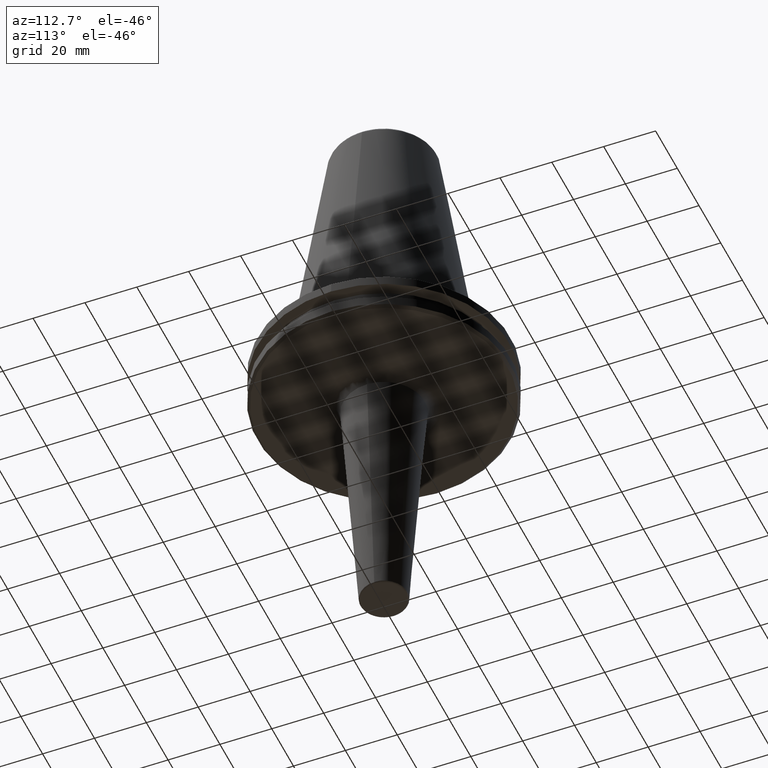
[diagram: clean part render]
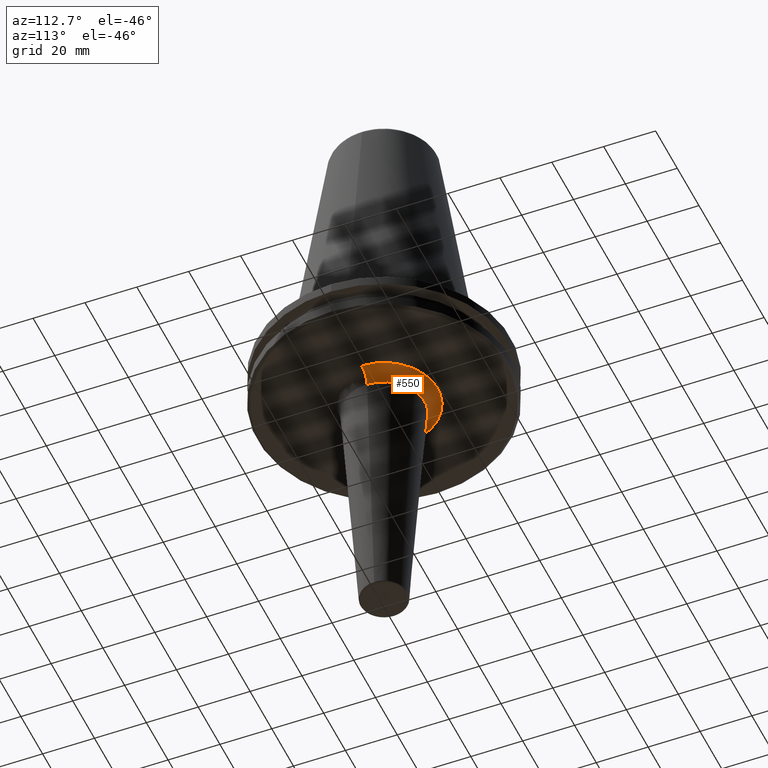
[diagram: same view with one face highlighted and labeled with its STEP entity id]
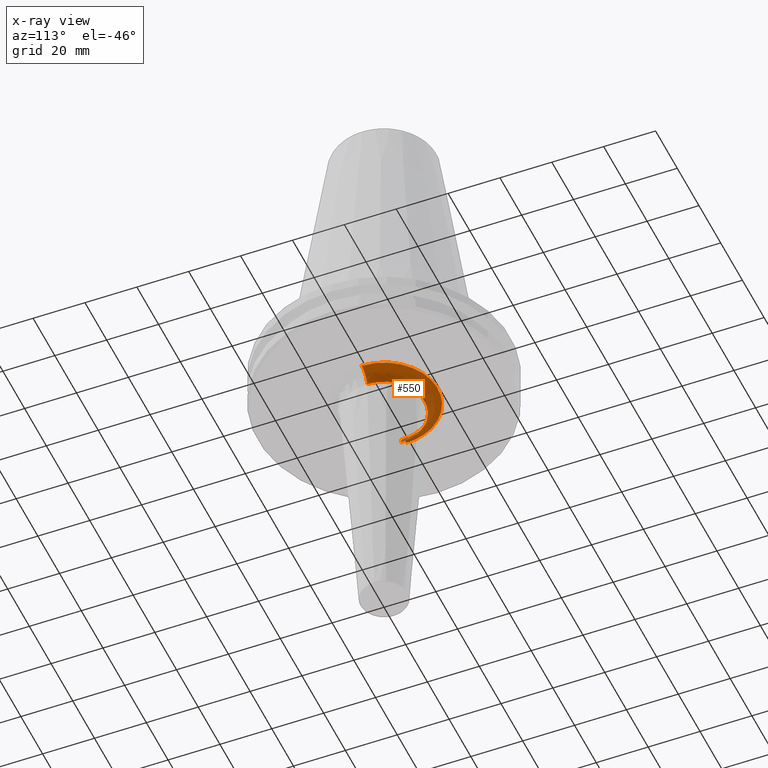
[diagram: x-ray of the same camera — body ghosted, the highlighted face saturated]
A machine part, auxiliary view. The second image highlights one B-rep face of the part: STEP entity #550.
The next image is the same camera in x-ray: the body ghosted, the highlighted face saturated — about 5% of this face is hidden behind the body in this view.
In plain terms, the highlighted face is a freeform B-spline surface patch.
Its self-contained STEP definition (entity closure, byte-faithful):
#2 = CARTESIAN_POINT ( 'NONE',  ( 11.60331024005817500, 17.09677942194831600, -19.10000000000000100 ) ) ;
#14 = CARTESIAN_POINT ( 'NONE',  ( 13.31511334660652900, 15.82824083878072200, -19.10000000000000500 ) ) ;
#27 = VERTEX_POINT ( 'NONE', #644 ) ;
#31 = CARTESIAN_POINT ( 'NONE',  ( 14.10622684062553100, 15.11461244780939600, -19.10000000000000900 ) ) ;
#40 = CARTESIAN_POINT ( 'NONE',  ( 11.82395498741769300, 16.94638141810697000, -19.10000000000000500 ) ) ;
#61 = CARTESIAN_POINT ( 'NONE',  ( 12.33117060663831100, 16.58611637784333200, -19.10000000000000500 ) ) ;
#65 = EDGE_CURVE ( 'NONE', #480, #1059, #1311, .T. ) ;
#107 = CARTESIAN_POINT ( 'NONE',  ( 15.61876583215376100, 13.60199461778601600, -19.10000000000000500 ) ) ;
#110 = CARTESIAN_POINT ( 'NONE',  ( 17.93559221354987100, 10.26945689679697600, -19.10000000000000500 ) ) ;
#118 = CARTESIAN_POINT ( 'NONE',  ( 17.38924988200345100, 11.16017969222157500, -19.10000000000000900 ) ) ;
#123 = CARTESIAN_POINT ( 'NONE',  ( 17.34296859954912800, 11.23197425704089600, -19.10000000000000500 ) ) ;
#128 = CARTESIAN_POINT ( 'NONE',  ( 17.62174341496280400, 10.79154292651847200, -19.10000000000000100 ) ) ;
#151 = ORIENTED_EDGE ( 'NONE', *, *, #365, .T. ) ;
#186 = CARTESIAN_POINT ( 'NONE',  ( 17.48283429422362900, 11.01302723254893200, -19.10000000000000100 ) ) ;
#188 = CARTESIAN_POINT ( 'NONE',  ( 18.95456656347803900, 8.254718562825205600, -19.10000000000000500 ) ) ;
#221 = CARTESIAN_POINT ( 'NONE',  ( 18.52219987817333500, 9.204127574752242000, -19.10000000000000500 ) ) ;
#232 = CARTESIAN_POINT ( 'NONE',  ( 19.22756302017071000, 7.565093204889770100, -19.10000000000000500 ) ) ;
#241 = CARTESIAN_POINT ( 'NONE',  ( 19.24222113980667400, 7.527722220469227600, -19.09999999999999800 ) ) ;
#260 = CARTESIAN_POINT ( 'NONE',  ( 19.42054852205212300, 7.058399176957856000, -19.10000000000000500 ) ) ;
#268 = EDGE_LOOP ( 'NONE', ( #269, #151, #301, #1389 ) ) ;
#269 = ORIENTED_EDGE ( 'NONE', *, *, #65, .F. ) ;
#273 = CARTESIAN_POINT ( 'NONE',  ( 19.31773304246670600, 7.332514990210746000, -19.10000000000000900 ) ) ;
#289 = CARTESIAN_POINT ( 'NONE',  ( 19.27257217906255000, 7.449680959839330500, -19.10000000000000500 ) ) ;
#301 = ORIENTED_EDGE ( 'NONE', *, *, #987, .F. ) ;
#326 = CARTESIAN_POINT ( 'NONE',  ( 20.34204610887248800, 3.623787591533039100, -19.10000000000000100 ) ) ;
#340 = CARTESIAN_POINT ( 'NONE',  ( 19.61594000779249900, 6.507253347307340600, -19.10000000000000500 ) ) ;
#342 = CARTESIAN_POINT ( 'NONE',  ( 19.96576508555141400, 5.393304875427365800, -19.10000000000000500 ) ) ;
#353 = CIRCLE ( 'NONE', #1461, 5.000000000000000900 ) ;
#355 = CIRCLE ( 'NONE', #1016, 15.67444019469497000 ) ;
#360 = CARTESIAN_POINT ( 'NONE',  ( 20.32109553540453500, 3.739177560899837900, -19.10000000000001200 ) ) ;
#361 = DIRECTION ( 'NONE',  ( -1.000000000000000000, 0.0000000000000000000, 0.0000000000000000000 ) ) ;
#364 = DIRECTION ( 'NONE',  ( 0.0000000000000000000, 1.000000000000000000, 0.0000000000000000000 ) ) ;
#365 = EDGE_CURVE ( 'NONE', #480, #1339, #353, .T. ) ;
#371 = CARTESIAN_POINT ( 'NONE',  ( 20.33151911907991800, 3.682070515440722900, -19.10000000000000100 ) ) ;
#374 = CARTESIAN_POINT ( 'NONE',  ( -20.66223503040310300, 0.0000000000000000000, -19.10000000000000500 ) ) ;
#375 = CARTESIAN_POINT ( 'NONE',  ( 20.41160845742173900, 3.215434902084175900, -19.10000000000000500 ) ) ;
#377 = CARTESIAN_POINT ( 'NONE',  ( -20.66223503040310300, 0.0000000000000000000, -24.10000000000000900 ) ) ;
#397 = AXIS2_PLACEMENT_3D ( 'NONE', #377, #364, #361 ) ;
#437 = CARTESIAN_POINT ( 'NONE',  ( 20.36601957362675100, 3.487740927830100400, -19.10000000000000900 ) ) ;
#439 = CARTESIAN_POINT ( 'NONE',  ( 15.67444019469497000, 1.919565301285981100E-015, -23.75085436150044400 ) ) ;
#446 = CARTESIAN_POINT ( 'NONE',  ( 15.67444019469496700, 31.34888038938993300, -23.75085436150044100 ) ) ;
#449 = CARTESIAN_POINT ( 'NONE',  ( 20.49335404215760200, 2.669972057232155000, -19.10000000000000500 ) ) ;
#452 = CARTESIAN_POINT ( 'NONE',  ( -15.67444019469496800, 31.34888038938993300, -23.75085436150044100 ) ) ;
#455 = CARTESIAN_POINT ( 'NONE',  ( -15.67444019469497000, 0.0000000000000000000, -23.75085436150044400 ) ) ;
#459 = CARTESIAN_POINT ( 'NONE',  ( 15.86780677280815500, 1.943245877380819400E-015, -20.98847467416920800 ) ) ;
#462 = CARTESIAN_POINT ( 'NONE',  ( 15.86780677280815500, 31.73561354561631000, -20.98847467416921100 ) ) ;
#465 = CARTESIAN_POINT ( 'NONE',  ( -15.86780677280815700, 31.73561354561631000, -20.98847467416921100 ) ) ;
#466 = CARTESIAN_POINT ( 'NONE',  ( -15.86780677280815500, 0.0000000000000000000, -20.98847467416920800 ) ) ;
#469 = CARTESIAN_POINT ( 'NONE',  ( 17.89309578317999100, 2.191272247770838200E-015, -19.10000000000001200 ) ) ;
#473 = CARTESIAN_POINT ( 'NONE',  ( 17.89309578317998700, 35.78619156635997500, -19.10000000000001200 ) ) ;
#480 = VERTEX_POINT ( 'NONE', #595 ) ;
#483 = CARTESIAN_POINT ( 'NONE',  ( -17.89309578317999100, 35.78619156635997500, -19.10000000000001200 ) ) ;
#485 = CARTESIAN_POINT ( 'NONE',  ( -17.89309578317999100, 0.0000000000000000000, -19.10000000000001200 ) ) ;
#487 = CARTESIAN_POINT ( 'NONE',  ( 20.66223503040310300, 2.530393999321347500E-015, -19.10000000000000900 ) ) ;
#488 = CARTESIAN_POINT ( 'NONE',  ( 20.66223503040310300, 2.530393999321347500E-015, -19.10000000000000500 ) ) ;
#491 = CARTESIAN_POINT ( 'NONE',  ( 20.66223503040310300, 41.32447006080620600, -19.10000000000000900 ) ) ;
#511 = CARTESIAN_POINT ( 'NONE',  ( -20.66223503040310300, 0.0000000000000000000, -19.10000000000000900 ) ) ;
#521 = CARTESIAN_POINT ( 'NONE',  ( -20.66223503040310300, 41.32447006080620600, -19.10000000000000900 ) ) ;
#550 = ADVANCED_FACE ( 'NONE', ( #1208 ), #1133, .F. ) ;
#566 = CARTESIAN_POINT ( 'NONE',  ( 15.67444019469497000, 0.0000000000000000000, -23.75085436150044400 ) ) ;
#570 = EDGE_CURVE ( 'NONE', #1059, #27, #761, .T. ) ;
#595 = CARTESIAN_POINT ( 'NONE',  ( 20.66223503040310300, 2.530393999321347500E-015, -19.10000000000000500 ) ) ;
#644 = CARTESIAN_POINT ( 'NONE',  ( -15.67444019469497000, 1.919565301285981100E-015, -23.75085436150044400 ) ) ;
#656 = DIRECTION ( 'NONE',  ( -1.000000000000000000, 0.0000000000000000000, 0.0000000000000000000 ) ) ;
#659 = DIRECTION ( 'NONE',  ( 0.0000000000000000000, 0.0000000000000000000, -1.000000000000000000 ) ) ;
#666 = CARTESIAN_POINT ( 'NONE',  ( 0.0000000000000000000, 0.0000000000000000000, -23.75085436150044400 ) ) ;
#670 = CARTESIAN_POINT ( 'NONE',  ( 20.61911648021276700, 1.575643194087410000, -19.10000000000000900 ) ) ;
#761 = CIRCLE ( 'NONE', #397, 5.000000000000000900 ) ;
#789 = DIRECTION ( 'NONE',  ( 1.000000000000000000, 1.224646799147353500E-016, 0.0000000000000000000 ) ) ;
#793 = DIRECTION ( 'NONE',  ( 1.224646799147353200E-016, -1.000000000000000000, 0.0000000000000000000 ) ) ;
#797 = CARTESIAN_POINT ( 'NONE',  ( 20.66223503040310300, 2.530393999321347500E-015, -24.10000000000000900 ) ) ;
#987 = EDGE_CURVE ( 'NONE', #27, #1339, #355, .T. ) ;
#1016 = AXIS2_PLACEMENT_3D ( 'NONE', #666, #659, #656 ) ;
#1059 = VERTEX_POINT ( 'NONE', #374 ) ;
#1089 = CARTESIAN_POINT ( 'NONE',  ( 20.66223503040310300, 0.6318130140650005700, -19.10000000000000500 ) ) ;
#1133 =( BOUNDED_SURFACE ( )  B_SPLINE_SURFACE ( 3, 3, ( 
 ( #511, #521, #491, #487 ),
 ( #485, #483, #473, #469 ),
 ( #466, #465, #462, #459 ),
 ( #455, #452, #446, #439 ) ),
 .UNSPECIFIED., .F., .F., .F. ) 
 B_SPLINE_SURFACE_WITH_KNOTS ( ( 4, 4 ),
 ( 4, 4 ),
 ( 0.0000000000000000000, 1.000000000000000000 ),
 ( 0.0000000000000000000, 1.000000000000000000 ),
 .UNSPECIFIED. ) 
 GEOMETRIC_REPRESENTATION_ITEM ( )  RATIONAL_B_SPLINE_SURFACE ( (
 ( 1.000000000000000000, 0.3333333333333334300, 0.3333333333333334300, 1.000000000000000000),
 ( 0.8209190244231523400, 0.2736396748077175000, 0.2736396748077175000, 0.8209190244231523400),
 ( 0.8209190244231523400, 0.2736396748077175000, 0.2736396748077175000, 0.8209190244231523400),
 ( 1.000000000000000000, 0.3333333333333334300, 0.3333333333333334300, 1.000000000000000000) ) ) 
 REPRESENTATION_ITEM ( '' )  SURFACE ( )  );
#1208 = FACE_OUTER_BOUND ( 'NONE', #268, .T. ) ;
#1278 = CARTESIAN_POINT ( 'NONE',  ( -20.66223503040310300, 0.0000000000000000000, -19.10000000000000500 ) ) ;
#1291 = CARTESIAN_POINT ( 'NONE',  ( -20.66223503040310300, 1.263981568568250300, -19.09999999999999800 ) ) ;
#1293 = CARTESIAN_POINT ( 'NONE',  ( -20.54725222989552700, 2.517236020498053900, -19.10000000000000500 ) ) ;
#1296 = CARTESIAN_POINT ( 'NONE',  ( 20.19540162010733700, 4.418508792252045400, -19.10000000000000500 ) ) ;
#1302 = CARTESIAN_POINT ( 'NONE',  ( -20.31369341636451200, 3.779177845403223700, -19.10000000000000100 ) ) ;
#1306 = CARTESIAN_POINT ( 'NONE',  ( -20.30963231872628700, 3.800947126847052300, -19.09999999999999800 ) ) ;
#1307 = CARTESIAN_POINT ( 'NONE',  ( -20.30188672696565500, 3.842104385607829200, -19.10000000000000900 ) ) ;
#1310 = CARTESIAN_POINT ( 'NONE',  ( 20.32444498193932200, 3.720920733799654800, -19.10000000000000900 ) ) ;
#1311 = B_SPLINE_CURVE_WITH_KNOTS ( 'NONE', 3,
 ( #488, #1089, #670, #449, #375, #437, #326, #371, #1310, #360, #1296, #342, #340, #260, #273, #289, #241, #232, #188, #221, #110, #128, #186, #118, #123, #1511, #107, #31, #14, #61, #40, #2, #1523, #1521, #1518, #1517, #1514, #1508, #1505, #1503, #1500, #1499, #1496, #1493, #1490, #1489, #1485, #1484, #1482, #1480, #1477, #1473, #1471, #1469, #1467, #1466, #1464, #1463, #1460, #1454, #1450, #1443, #1434, #1432, #1429, #1426, #1424, #1412, #1410, #1408, #1403, #1397, #1392, #1390, #1385, #1384, #1381, #1379, #1377, #1375, #1372, #1370, #1367, #1362, #1359, #1357, #1353, #1352, #1348, #1347, #1345, #1343, #1338, #1337, #1335, #1334, #1330, #1319, #1313, #1312, #1307, #1306, #1302, #1293, #1291, #1278 ),
 .UNSPECIFIED., .F., .F.,
 ( 4, 1, 1, 1, 1, 1, 2, 2, 1, 1, 1, 1, 2, 2, 1, 1, 1, 2, 2, 2, 1, 1, 1, 2, 2, 1, 1, 1, 1, 2, 2, 1, 1, 1, 1, 1, 2, 2, 2, 1, 1, 1, 1, 1, 2, 2, 1, 1, 1, 1, 2, 2, 1, 1, 1, 2, 2, 2, 1, 1, 1, 2, 2, 1, 1, 1, 1, 2, 2, 1, 1, 1, 1, 1, 2, 2, 4 ),
 ( 0.0000000000000000000, 0.03124999999999914700, 0.04687499999999872300, 0.05468749999999852900, 0.05859374999999843200, 0.06054687499999838300, 0.06152343749999835500, 0.06249999999999832100, 0.09374999999999655800, 0.1093749999999957000, 0.1171874999999952400, 0.1210937499999950500, 0.1230468749999949200, 0.1249999999999948000, 0.1562499999999932600, 0.1718749999999925600, 0.1796874999999922600, 0.1835937499999920600, 0.1874999999999919000, 0.2499999999999890100, 0.2812499999999875700, 0.2968749999999868400, 0.3046874999999865100, 0.3085937499999863400, 0.3124999999999861800, 0.3437499999999846800, 0.3593749999999839000, 0.3671874999999835100, 0.3710937499999833500, 0.3730468749999832900, 0.3749999999999832900, 0.4062499999999830100, 0.4218749999999828500, 0.4296874999999828500, 0.4335937499999827900, 0.4355468749999827900, 0.4365234374999827400, 0.4374999999999827400, 0.4999999999999830100, 0.5312499999999831200, 0.5468749999999831200, 0.5546874999999832400, 0.5585937499999832400, 0.5605468749999832400, 0.5615234374999832400, 0.5624999999999832400, 0.5937499999999841200, 0.6093749999999845700, 0.6171874999999847900, 0.6210937499999849000, 0.6230468749999850100, 0.6249999999999850100, 0.6562499999999865700, 0.6718749999999873400, 0.6796874999999876800, 0.6835937499999879000, 0.6874999999999881200, 0.7499999999999903400, 0.7812499999999914500, 0.7968749999999920100, 0.8046874999999922300, 0.8085937499999923400, 0.8124999999999924500, 0.8437499999999936700, 0.8593749999999944500, 0.8671874999999947800, 0.8710937499999948900, 0.8730468749999948900, 0.8749999999999950000, 0.9062499999999960000, 0.9218749999999964500, 0.9296874999999966700, 0.9335937499999967800, 0.9355468749999968900, 0.9365234374999968900, 0.9374999999999967800, 1.000000000000000000 ),
 .UNSPECIFIED. ) ;
#1312 = CARTESIAN_POINT ( 'NONE',  ( -20.29017705771814300, 3.903813761452014800, -19.10000000000000100 ) ) ;
#1313 = CARTESIAN_POINT ( 'NONE',  ( -20.26221552489477400, 4.047616719009605300, -19.10000000000000100 ) ) ;
#1319 = CARTESIAN_POINT ( 'NONE',  ( -20.20373657426467100, 4.334480289809403300, -19.10000000000000500 ) ) ;
#1330 = CARTESIAN_POINT ( 'NONE',  ( -20.07655513307094400, 4.905238054147472900, -19.10000000000000500 ) ) ;
#1334 = CARTESIAN_POINT ( 'NONE',  ( -19.78129809094931700, 6.034876073777501100, -19.10000000000000500 ) ) ;
#1335 = CARTESIAN_POINT ( 'NONE',  ( -19.45811635244373200, 6.982775789381298300, -19.10000000000000500 ) ) ;
#1337 = CARTESIAN_POINT ( 'NONE',  ( -19.19609115836033600, 7.644589628230024300, -19.10000000000000100 ) ) ;
#1338 = CARTESIAN_POINT ( 'NONE',  ( -19.17924504954758500, 7.686767263421472800, -19.10000000000000500 ) ) ;
#1339 = VERTEX_POINT ( 'NONE', #566 ) ;
#1343 = CARTESIAN_POINT ( 'NONE',  ( -19.14661976409573500, 7.767684390106789600, -19.10000000000000500 ) ) ;
#1345 = CARTESIAN_POINT ( 'NONE',  ( -19.09731590598961800, 7.888869345813991400, -19.10000000000000100 ) ) ;
#1347 = CARTESIAN_POINT ( 'NONE',  ( -18.97971206091043300, 8.170299102218743700, -19.10000000000000500 ) ) ;
#1348 = CARTESIAN_POINT ( 'NONE',  ( -18.73425833275903300, 8.727818054046746700, -19.10000000000000500 ) ) ;
#1352 = CARTESIAN_POINT ( 'NONE',  ( -18.20236672448409700, 9.821493713776673600, -19.10000000000000500 ) ) ;
#1353 = CARTESIAN_POINT ( 'NONE',  ( -17.67620108543906100, 10.72230900395765100, -19.10000000000001200 ) ) ;
#1357 = CARTESIAN_POINT ( 'NONE',  ( -17.24644758303631100, 11.37960997679962300, -19.10000000000000900 ) ) ;
#1359 = CARTESIAN_POINT ( 'NONE',  ( -17.19615558025781300, 11.45548782518820700, -19.10000000000000900 ) ) ;
#1362 = CARTESIAN_POINT ( 'NONE',  ( -17.09677942194722500, 11.60331024005821400, -19.10000000000000500 ) ) ;
#1367 = CARTESIAN_POINT ( 'NONE',  ( -16.94638141810515100, 11.82395498741775200, -19.10000000000000100 ) ) ;
#1370 = CARTESIAN_POINT ( 'NONE',  ( -16.58611637784021700, 12.33117060663841300, -19.10000000000001200 ) ) ;
#1372 = CARTESIAN_POINT ( 'NONE',  ( -15.82824083877658300, 13.31511334660666400, -19.10000000000000900 ) ) ;
#1375 = CARTESIAN_POINT ( 'NONE',  ( -15.11461244780701000, 14.10622684062560600, -19.10000000000000500 ) ) ;
#1377 = CARTESIAN_POINT ( 'NONE',  ( -13.60199461779075700, 15.61876583215359900, -19.10000000000000500 ) ) ;
#1379 = CARTESIAN_POINT ( 'NONE',  ( -12.50021298870000500, 16.51386793446767600, -19.10000000000000900 ) ) ;
#1381 = CARTESIAN_POINT ( 'NONE',  ( -11.23197425703977500, 17.34296859954995500, -19.09999999999999800 ) ) ;
#1384 = CARTESIAN_POINT ( 'NONE',  ( -11.16017969222517400, 17.38924988200129500, -19.10000000000000900 ) ) ;
#1385 = CARTESIAN_POINT ( 'NONE',  ( -11.01302723255577800, 17.48283429421951500, -19.10000000000000100 ) ) ;
#1389 = ORIENTED_EDGE ( 'NONE', *, *, #570, .F. ) ;
#1390 = CARTESIAN_POINT ( 'NONE',  ( -10.79154292652984500, 17.62174341495596500, -19.10000000000000100 ) ) ;
#1392 = CARTESIAN_POINT ( 'NONE',  ( -10.26945689681646100, 17.93559221353816100, -19.10000000000000500 ) ) ;
#1397 = CARTESIAN_POINT ( 'NONE',  ( -9.204127574778224700, 18.52219987815772800, -19.10000000000000500 ) ) ;
#1403 = CARTESIAN_POINT ( 'NONE',  ( -8.254718562840055900, 18.95456656346911500, -19.10000000000000900 ) ) ;
#1408 = CARTESIAN_POINT ( 'NONE',  ( -7.565093204888847300, 19.22756302017126000, -19.10000000000000500 ) ) ;
#1410 = CARTESIAN_POINT ( 'NONE',  ( -7.527722220470905300, 19.24222113980636800, -19.10000000000000500 ) ) ;
#1412 = CARTESIAN_POINT ( 'NONE',  ( -7.449680959842600800, 19.27257217906194600, -19.10000000000000500 ) ) ;
#1424 = CARTESIAN_POINT ( 'NONE',  ( -7.332514990216327400, 19.31773304246568300, -19.10000000000000100 ) ) ;
#1426 = CARTESIAN_POINT ( 'NONE',  ( -7.058399176968276100, 19.42054852205022900, -19.10000000000000500 ) ) ;
#1429 = CARTESIAN_POINT ( 'NONE',  ( -6.507253347325199200, 19.61594000778924900, -19.10000000000000500 ) ) ;
#1432 = CARTESIAN_POINT ( 'NONE',  ( -5.393304875451170800, 19.96576508554709800, -19.10000000000000900 ) ) ;
#1434 = CARTESIAN_POINT ( 'NONE',  ( -4.418508792265643400, 20.19540162010488200, -19.10000000000001200 ) ) ;
#1443 = CARTESIAN_POINT ( 'NONE',  ( -3.739177560899408000, 20.32109553540460900, -19.10000000000000500 ) ) ;
#1450 = CARTESIAN_POINT ( 'NONE',  ( -3.720915299507477200, 20.32444598742445100, -19.10000000000000500 ) ) ;
#1454 = CARTESIAN_POINT ( 'NONE',  ( -3.682059775225482700, 20.33152110629858500, -19.10000000000000100 ) ) ;
#1460 = CARTESIAN_POINT ( 'NONE',  ( -3.623769020802307700, 20.34204954493980800, -19.10000000000000500 ) ) ;
#1461 = AXIS2_PLACEMENT_3D ( 'NONE', #797, #793, #789 ) ;
#1463 = CARTESIAN_POINT ( 'NONE',  ( -3.487704984480301200, 20.36602622407964000, -19.10000000000000500 ) ) ;
#1464 = CARTESIAN_POINT ( 'NONE',  ( -3.215367807831221600, 20.41162087160046600, -19.10000000000000100 ) ) ;
#1466 = CARTESIAN_POINT ( 'NONE',  ( -2.669857038512812000, 20.49337532360685200, -19.10000000000000500 ) ) ;
#1467 = CARTESIAN_POINT ( 'NONE',  ( -1.575489835794957600, 20.61914485547843500, -19.10000000000001200 ) ) ;
#1469 = CARTESIAN_POINT ( 'NONE',  ( -0.6317253807550234900, 20.66225124484061800, -19.10000000000000500 ) ) ;
#1471 = CARTESIAN_POINT ( 'NONE',  ( 1.263450761510062700, 20.66220260152806200, -19.10000000000000500 ) ) ;
#1473 = CARTESIAN_POINT ( 'NONE',  ( 2.517411334906057600, 20.54721978289652600, -19.10000000000001200 ) ) ;
#1477 = CARTESIAN_POINT ( 'NONE',  ( 3.779175106115600700, 20.31369392334887200, -19.10000000000000500 ) ) ;
#1480 = CARTESIAN_POINT ( 'NONE',  ( 3.800947126846988300, 20.30963231872629700, -19.10000000000000100 ) ) ;
#1482 = CARTESIAN_POINT ( 'NONE',  ( 3.842104385607700800, 20.30188672696567300, -19.10000000000000100 ) ) ;
#1484 = CARTESIAN_POINT ( 'NONE',  ( 3.903813761451795400, 20.29017705771817900, -19.10000000000000500 ) ) ;
#1485 = CARTESIAN_POINT ( 'NONE',  ( 4.047616719009171900, 20.26221552489486300, -19.10000000000000100 ) ) ;
#1489 = CARTESIAN_POINT ( 'NONE',  ( 4.334480289808595900, 20.20373657426482300, -19.10000000000000500 ) ) ;
#1490 = CARTESIAN_POINT ( 'NONE',  ( 4.905238054146085600, 20.07655513307119600, -19.10000000000000900 ) ) ;
#1493 = CARTESIAN_POINT ( 'NONE',  ( 6.034876073775639500, 19.78129809094967600, -19.10000000000000500 ) ) ;
#1496 = CARTESIAN_POINT ( 'NONE',  ( 6.982775789380258200, 19.45811635244392700, -19.10000000000001200 ) ) ;
#1499 = CARTESIAN_POINT ( 'NONE',  ( 7.644589628230090000, 19.19609115836032500, -19.10000000000000500 ) ) ;
#1500 = CARTESIAN_POINT ( 'NONE',  ( 7.686767263420279900, 19.17924504954809000, -19.10000000000000500 ) ) ;
#1503 = CARTESIAN_POINT ( 'NONE',  ( 7.767684390104453700, 19.14661976409670900, -19.09999999999999800 ) ) ;
#1505 = CARTESIAN_POINT ( 'NONE',  ( 7.888869345810005200, 19.09731590599129400, -19.10000000000000500 ) ) ;
#1508 = CARTESIAN_POINT ( 'NONE',  ( 8.170299102211309600, 18.97971206091356300, -19.10000000000000900 ) ) ;
#1511 = CARTESIAN_POINT ( 'NONE',  ( 16.51386793448100600, 12.50021298868208700, -19.10000000000000500 ) ) ;
#1514 = CARTESIAN_POINT ( 'NONE',  ( 8.727818054033994200, 18.73425833276438400, -19.10000000000000500 ) ) ;
#1517 = CARTESIAN_POINT ( 'NONE',  ( 9.821493713759680900, 18.20236672449123800, -19.10000000000000900 ) ) ;
#1518 = CARTESIAN_POINT ( 'NONE',  ( 10.72230900394793500, 17.67620108544314300, -19.10000000000000500 ) ) ;
#1521 = CARTESIAN_POINT ( 'NONE',  ( 11.37960997680083300, 17.24644758303579900, -19.10000000000000500 ) ) ;
#1523 = CARTESIAN_POINT ( 'NONE',  ( 11.45548782518819100, 17.19615558025837400, -19.10000000000000100 ) ) ;